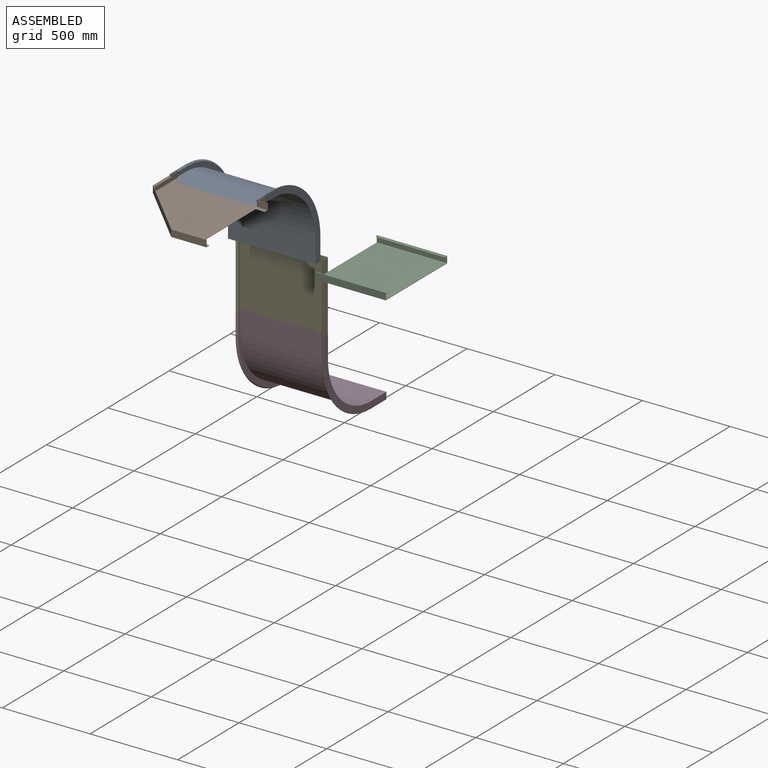
[diagram: assembled view]
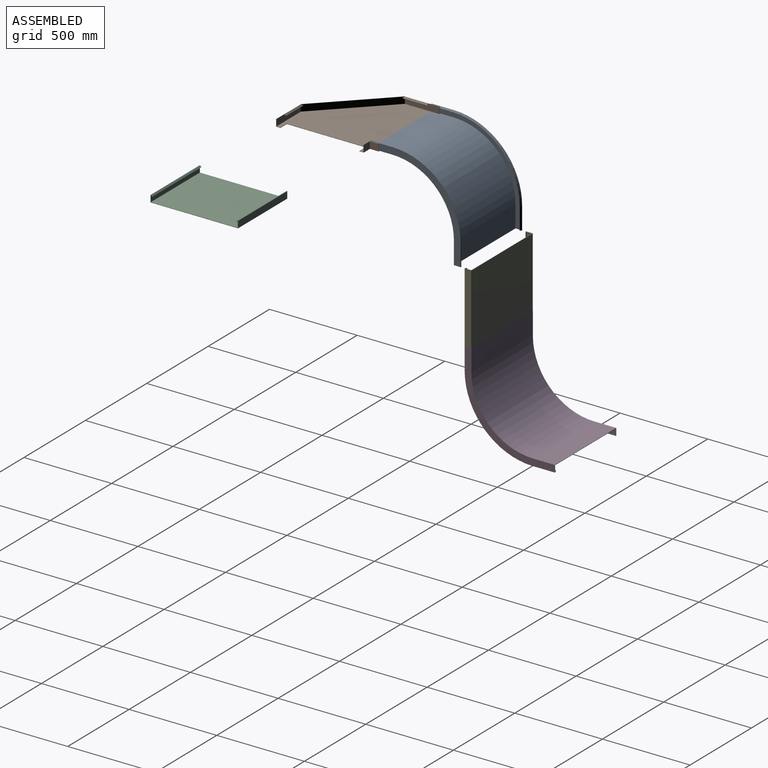
[diagram: assembled view, second angle]
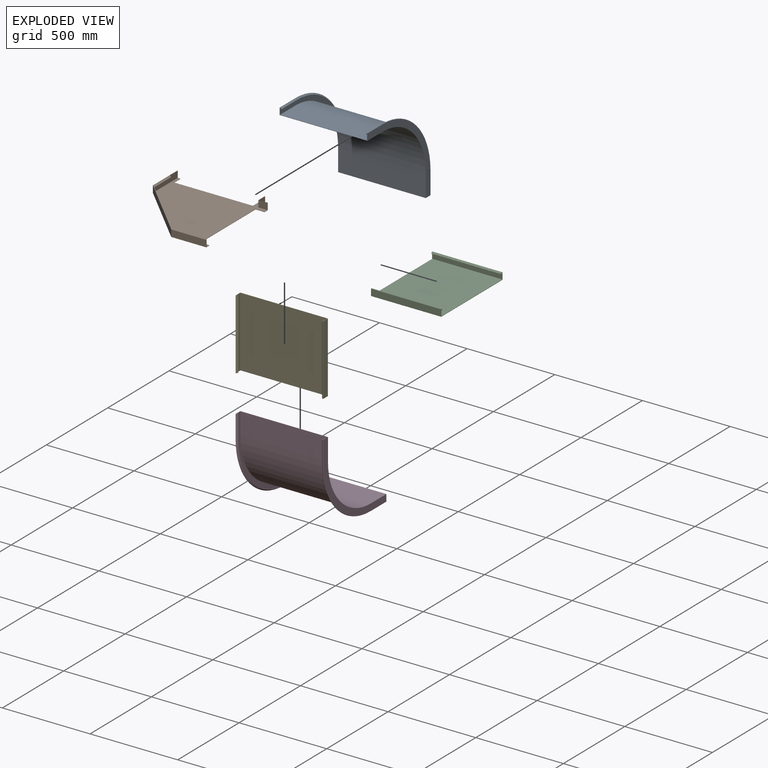
[diagram: exploded view]
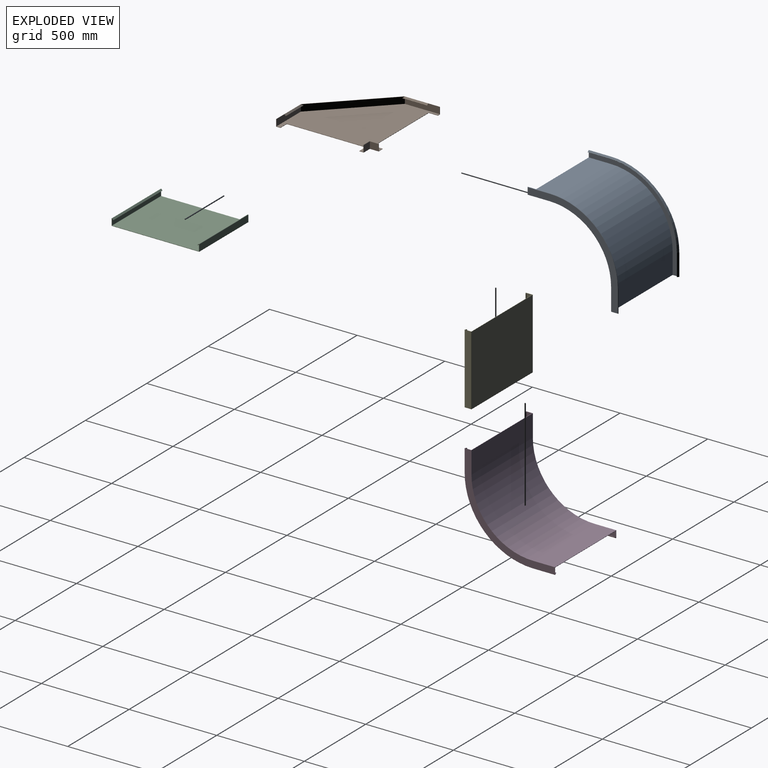
[diagram: exploded view, second angle]
ASSEMBLY  parts=5 mates=3
PART A: 36 faces, bbox 500x548.1x548.1 mm
  f0: plane 500x40mm, normal (0,1,0), area 1193.4mm2, adj f2,f3,f4,f5,f6,f7,f8,f9
  f1: plane 500x40mm, normal (0,0,-1), area 1193.4mm2, adj f4,f6,f11,f13,f26,f27,f28,f29
  f2: plane 126x1.41mm, normal (-0.71,0,-0.71), area 252mm2, adj f0,f3,f15,f16
  f3: plane 126x7.07mm, normal (0.71,0,-0.71), area 1260mm2, adj f0,f2,f4,f17
  f4: plane 514x514mm, normal (-1,0,0), area 29995mm2, adj f0,f1,f3,f5,f17,f18,f27,f28
  f5: plane 496x126mm, normal (0,0,1), area 62496mm2, adj f0,f4,f6,f18
  f6: plane 514x514mm, normal (1,0,0), area 29995mm2, adj f0,f1,f5,f7,f18,f19,f28,f29
  f7: plane 126x7.07mm, normal (-0.71,0,-0.71), area 1260mm2, adj f0,f6,f8,f19
  f8: plane 126x1.41mm, normal (0.71,0,-0.71), area 252mm2, adj f0,f7,f9,f20
  f9: plane 126x7.07mm, normal (0.71,0,0.71), area 1260mm2, adj f0,f8,f10,f21
  f10: cylinder r=2mm len=126mm, axis (0,-1,0), area 593.8mm2, adj f0,f9,f11,f22
  f11: plane 514x514mm, normal (-1,0,0), area 31601.7mm2, adj f0,f1,f10,f12,f22,f23,f32,f33
  f12: plane 500x126mm, normal (0,0,-1), area 63000mm2, adj f0,f11,f13,f23
  f13: plane 514x514mm, normal (1,0,0), area 31601.7mm2, adj f0,f1,f12,f14,f23,f24,f33,f34
  f14: cylinder r=2mm len=126mm, axis (0,-1,0), area 593.8mm2, adj f0,f13,f15,f24
  f15: plane 126x7.07mm, normal (-0.71,0,0.71), area 1260mm2, adj f0,f2,f14,f25
  f16: cone r=382.34mm half-angle=45deg, axis (-1,0,0), area 1198.9mm2, adj f2,f17,f25,f26
  f17: cone r=380.93mm half-angle=45deg, axis (1,0,0), area 6039.2mm2, adj f3,f4,f16,f27
  f18: cylinder r=352mm len=496mm, axis (1,0,0), area 274248.5mm2, adj f4,f5,f6,f28
  f19: cone r=388mm half-angle=45deg, axis (-1,0,0), area 6039.2mm2, adj f6,f7,f20,f29
  f20: cone r=380.93mm half-angle=45deg, axis (1,0,0), area 1198.9mm2, adj f8,f19,f21,f30
  f21: cone r=382.34mm half-angle=45deg, axis (-1,0,0), area 6061.4mm2, adj f9,f20,f22,f31
  f22: torus R=388mm, axis (1,0,0), area 2882.8mm2, adj f10,f11,f21,f32
  f23: cylinder r=350mm len=500mm, axis (1,0,0), area 274889.4mm2, adj f11,f12,f13,f33
  f24: torus R=388mm, axis (1,0,0), area 2882.8mm2, adj f13,f14,f25,f34
  f25: cone r=389.41mm half-angle=45deg, axis (1,0,0), area 6061.4mm2, adj f15,f16,f24,f35
  f26: plane 126x1.41mm, normal (-0.71,0.71,0), area 252mm2, adj f1,f16,f27,f35
  f27: plane 126x7.07mm, normal (0.71,0.71,0), area 1260mm2, adj f1,f4,f17,f26
  f28: plane 496x126mm, normal (0,-1,0), area 62496mm2, adj f1,f4,f6,f18
  f29: plane 126x7.07mm, normal (-0.71,0.71,0), area 1260mm2, adj f1,f6,f19,f30
  f30: plane 126x1.41mm, normal (0.71,0.71,0), area 252mm2, adj f1,f20,f29,f31
  f31: plane 126x7.07mm, normal (0.71,-0.71,0), area 1260mm2, adj f1,f21,f30,f32
  f32: cylinder r=2mm len=126mm, axis (0,0,-1), area 593.8mm2, adj f1,f11,f22,f31
  f33: plane 500x126mm, normal (0,1,0), area 63000mm2, adj f1,f11,f13,f23
  f34: cylinder r=2mm len=126mm, axis (0,0,-1), area 593.8mm2, adj f1,f13,f24,f35
  f35: plane 126x7.07mm, normal (-0.71,-0.71,0), area 1260mm2, adj f1,f25,f26,f34
PART B: 45 faces, bbox 550x550x40 mm
  f0: plane 548x548mm, normal (0,0,1), area 190101.1mm2, adj f8,f10,f11,f12,f14,f17,f22,f28
  f1: plane 141.86x7.07mm, normal (-0.71,0,0.71), area 1383.2mm2, adj f2,f4,f31,f41
  f2: plane 141.86x1.41mm, normal (-0.71,0,-0.71), area 282.3mm2, adj f1,f3,f31,f41
  f3: plane 140.44x7.07mm, normal (0.71,0,-0.71), area 1369.1mm2, adj f2,f8,f31,f41
  f4: cylinder r=2mm len=148.59mm, axis (0,-1,0), area 669.2mm2, adj f1,f8,f24,f26,f27,f31,f40,f41
  f5: plane 142.66x7.07mm, normal (0,0.71,0.71), area 1391.2mm2, adj f7,f9,f30,f41
  f6: plane 141.24x7.07mm, normal (0,-0.71,-0.71), area 1377.1mm2, adj f7,f10,f30,f41
  f7: plane 142.66x1.41mm, normal (0,0.71,-0.71), area 283.9mm2, adj f5,f6,f30,f41
  f8: plane 199.17x38mm, normal (-1,0,0), area 7301.8mm2, adj f0,f3,f4,f14,f16,f31,f41
  f9: cylinder r=2mm len=148.59mm, axis (1,0,0), area 670.5mm2, adj f5,f10,f20,f21,f25,f30,f41,f43
  f10: plane 199.17x38mm, normal (0,1,0), area 7300.2mm2, adj f0,f6,f9,f12,f18,f30,f41
  f11: plane 40x25mm, normal (0,1,0), area 125.1mm2, adj f0,f13,f15,f22,f23,f36
  f12: plane 40x16.94mm, normal (-1,0,0), area 109mm2, adj f0,f10,f13,f18,f25,f33
  f13: plane 550x550mm, normal (0,0,-1), area 192091.8mm2, adj f11,f12,f14,f17,f23,f24,f25,f29
  f14: plane 40x25mm, normal (0,1,0), area 125.1mm2, adj f0,f8,f13,f16,f24,f38
  f15: cylinder r=2mm len=52mm, axis (0,-1,0), area 159.4mm2, adj f11,f19,f22,f23
  f16: cylinder r=2mm len=52mm, axis (0,-1,0), area 159.4mm2, adj f8,f14,f24,f27
  f17: plane 40x33.06mm, normal (-1,0,0), area 141.3mm2, adj f0,f13,f19,f28,f29,f35
  f18: cylinder r=2mm len=52mm, axis (1,0,0), area 159.4mm2, adj f10,f12,f21,f25
  f19: cylinder r=2mm len=52mm, axis (1,0,0), area 159.4mm2, adj f15,f17,f28,f29
  f20: plane 1.41x1.41mm, normal (0.71,0,0.71), area 0.4mm2, adj f9,f21,f25
  f21: cylinder r=2mm len=3.41mm, axis (0,-1,0), area 4.3mm2, adj f9,f18,f20,f25
  f22: plane 52x38mm, normal (1,0,0), area 1976mm2, adj f0,f11,f15,f28
  f23: plane 50x38mm, normal (-1,0,0), area 1900mm2, adj f11,f13,f15,f29
  f24: plane 200x40mm, normal (1,0,0), area 7606.7mm2, adj f4,f13,f14,f16,f26,f27,f32
  f25: plane 200x40mm, normal (0,-1,0), area 7606.7mm2, adj f9,f12,f13,f18,f20,f21,f32
  f26: plane 1.41x1.41mm, normal (0,-0.71,0.71), area 0.4mm2, adj f4,f24,f27
  f27: cylinder r=2mm len=3.41mm, axis (1,0,0), area 4.3mm2, adj f4,f16,f24,f26
  f28: plane 52x38mm, normal (0,-1,0), area 1976mm2, adj f0,f17,f19,f22
  f29: plane 50x38mm, normal (0,1,0), area 1900mm2, adj f13,f17,f19,f23
  f30: plane 9.07x8.49mm, normal (-1,0,0), area 21.6mm2, adj f5,f6,f7,f9,f10
  f31: plane 9.07x8.49mm, normal (0,1,0), area 21.6mm2, adj f1,f2,f3,f4,f8
  f32: plane 350x350mm, normal (0.71,-0.71,0), area 19799mm2, adj f13,f24,f25,f39,f42,f43
  f33: plane 52x2mm, normal (0,1,0), area 104mm2, adj f0,f12,f13,f34
  f34: plane 450x2mm, normal (-1,0,0), area 900mm2, adj f0,f13,f33,f35
  f35: plane 52x2mm, normal (0,-1,0), area 104mm2, adj f0,f13,f17,f34
  f36: plane 51.69x2mm, normal (1,0,0), area 103.4mm2, adj f0,f11,f13,f37
  f37: plane 450x2mm, normal (0,1,0), area 900mm2, adj f0,f13,f36,f38
  f38: plane 51.69x2mm, normal (-1,0,0), area 103.4mm2, adj f0,f13,f14,f37
  f39: plane 351.41x351.41mm, normal (0,0,1), area 989.9mm2, adj f32,f40,f41,f42,f43,f44
  f40: plane 0.59x0.59mm, normal (-0.71,0.71,0), area 0mm2, adj f4,f39,f42
  f41: plane 348.83x348.83mm, normal (-0.71,0.71,0), area 18685.1mm2, adj f0,f1,f2,f3,f4,f5,f6,f7
  f42: plane 2x1.41mm, normal (0.71,0.71,0), area 1.2mm2, adj f4,f32,f39,f40
  f43: plane 2x1.41mm, normal (-0.71,-0.71,0), area 1.2mm2, adj f9,f32,f39,f44
  f44: plane 0.59x0.59mm, normal (-0.71,0.71,0), area 0mm2, adj f9,f39,f43
PART C: 23 faces, bbox 500x400x40 mm
  f0: plane 400x7.07mm, normal (-0.71,0,0.71), area 4000mm2, adj f1,f13,f14,f15
  f1: plane 400x1.41mm, normal (-0.71,0,-0.71), area 800mm2, adj f0,f2,f14,f15
  f2: plane 400x5.36mm, normal (0.71,0,-0.71), area 3034.3mm2, adj f1,f14,f15,f16
  f3: plane 400x32.59mm, normal (-1,0,0), area 13034.3mm2, adj f14,f15,f16,f19
  f4: plane 494x400mm, normal (0,0,1), area 197600mm2, adj f14,f15,f19,f20
  f5: plane 400x32.59mm, normal (1,0,0), area 13034.3mm2, adj f14,f15,f17,f20
  f6: plane 400x5.36mm, normal (-0.71,0,-0.71), area 3034.1mm2, adj f7,f14,f15,f17,f18
  f7: plane 399x1.41mm, normal (0.71,0,-0.71), area 798mm2, adj f6,f8,f15,f18
  f8: plane 400x7.07mm, normal (0.71,0,0.71), area 3999.8mm2, adj f7,f9,f14,f15,f18
  f9: cylinder r=2mm len=400mm, axis (0,1,0), area 1885mm2, adj f8,f10,f14,f15
  f10: plane 400x37mm, normal (-1,0,0), area 14800mm2, adj f9,f14,f15,f21
  f11: plane 498x400mm, normal (0,0,-1), area 199200mm2, adj f14,f15,f21,f22
  f12: plane 400x37mm, normal (1,0,0), area 14800mm2, adj f13,f14,f15,f22
  f13: cylinder r=2mm len=400mm, axis (0,1,0), area 1885mm2, adj f0,f12,f14,f15
  f14: plane 500x40mm, normal (0,-1,0), area 1193.9mm2, adj f0,f1,f2,f3,f4,f5,f6,f8
  f15: plane 500x40mm, normal (0,1,0), area 1195.9mm2, adj f0,f1,f2,f3,f4,f5,f6,f7
  f16: cylinder r=1mm len=400mm, axis (0,-1,0), area 942.5mm2, adj f2,f3,f14,f15
  f17: cylinder r=1mm len=400mm, axis (0,-1,0), area 942.5mm2, adj f5,f6,f14,f15
  f18: cylinder r=1mm len=2.12mm, axis (-0.71,0,-0.71), area 3.1mm2, adj f6,f7,f8,f14
  f19: cylinder r=1mm len=400mm, axis (0,1,0), area 628.3mm2, adj f3,f4,f14,f15
  f20: cylinder r=1mm len=400mm, axis (0,-1,0), area 628.3mm2, adj f4,f5,f14,f15
  f21: cylinder r=1mm len=400mm, axis (0,1,0), area 628.3mm2, adj f10,f11,f14,f15
  f22: cylinder r=1mm len=400mm, axis (0,-1,0), area 628.3mm2, adj f11,f12,f14,f15
PART D: same geometry as A
PART E: same geometry as C
PLACE A rot(axis=(-1,0,0),90deg) t=(-288.65,-249.18,1292.2)mm
PLACE B rot(axis=(0,0,-1),90deg) t=(-280.59,-723.18,1768.2)mm fixed
PLACE C rot(axis=(0,0,-1),90deg) t=(1292.72,-973.18,1788.2)mm fixed
PLACE D rot(axis=(1,0,0),90deg) t=(-288.65,-149.18,892.2)mm
PLACE E rot(axis=(0,-0.71,0.71),180deg) t=(-38.65,-169.18,892.2)mm
MATE fastened B.f34 <-> A.f1  axis (0,1,0) through (-38.65,-725.18,1768.2)mm
MATE fastened D.f0 <-> E.f15  axis (0,0,1) through (-38.65,-149.18,892.2)mm
MATE fastened A.f0 <-> E.f14  axis (0,0,-1) through (-38.65,-249.18,1292.2)mm
